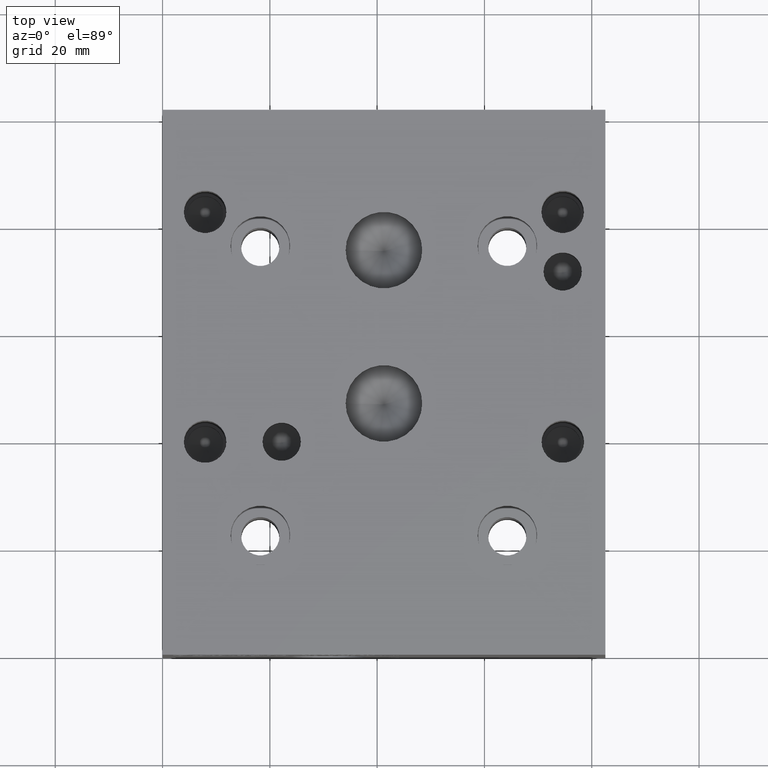
[diagram: clean part render]
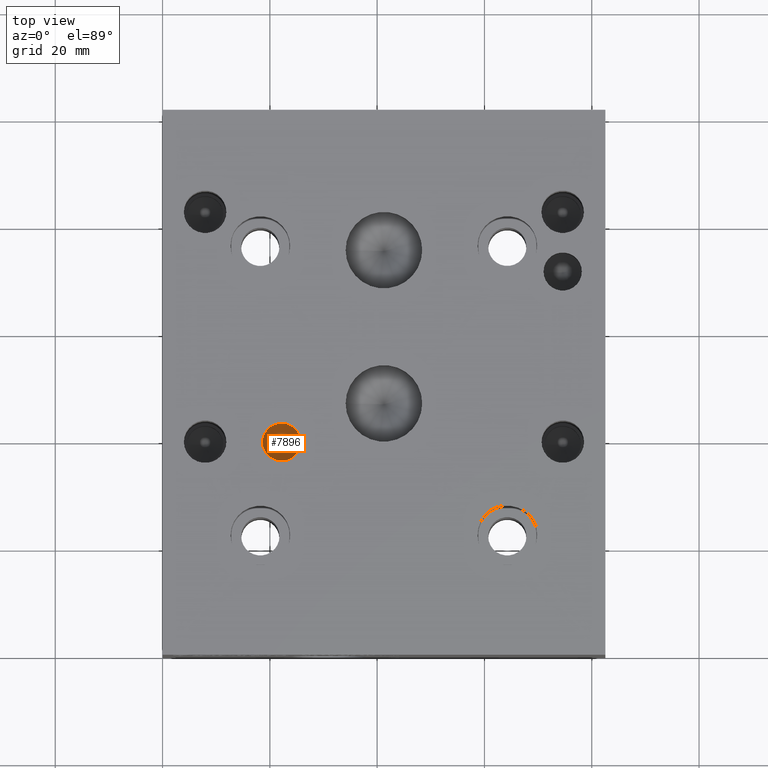
[diagram: same view with one face highlighted and labeled with its STEP entity id]
A machine part, top view. The second image highlights one B-rep face of the part: STEP entity #7896.
In plain terms, the highlighted conical surface has half-angle 60 deg.
Its self-contained STEP definition (entity closure, byte-faithful):
#19=CONICAL_SURFACE('',#8302,1.78435,1.0471975511966);
#754=CIRCLE('',#8303,3.5687);
#755=CIRCLE('',#8304,3.5687);
#1199=FACE_OUTER_BOUND('',#1651,.T.);
#1651=EDGE_LOOP('',(#7115,#7116,#7117,#7118));
#2462=LINE('',#13242,#3253);
#3253=VECTOR('',#9873,1.78435);
#3969=VERTEX_POINT('',#13238);
#3970=VERTEX_POINT('',#13239);
#3971=VERTEX_POINT('',#13241);
#5035=EDGE_CURVE('',#3969,#3970,#754,.T.);
#5036=EDGE_CURVE('',#3970,#3971,#2462,.T.);
#5037=EDGE_CURVE('',#3970,#3969,#755,.T.);
#7115=ORIENTED_EDGE('',*,*,#5035,.T.);
#7116=ORIENTED_EDGE('',*,*,#5036,.T.);
#7117=ORIENTED_EDGE('',*,*,#5036,.F.);
#7118=ORIENTED_EDGE('',*,*,#5037,.T.);
#7896=ADVANCED_FACE('',(#1199),#19,.F.);
#8302=AXIS2_PLACEMENT_3D('',#13237,#9869,#9870);
#8303=AXIS2_PLACEMENT_3D('',#13240,#9871,#9872);
#8304=AXIS2_PLACEMENT_3D('',#13243,#9874,#9875);
#9869=DIRECTION('center_axis',(0.,0.,1.));
#9870=DIRECTION('ref_axis',(1.,0.,0.));
#9871=DIRECTION('center_axis',(0.,0.,1.));
#9872=DIRECTION('ref_axis',(1.,0.,0.));
#9873=DIRECTION('',(0.866025403784439,1.06057523872491E-16,-0.5));
#9874=DIRECTION('center_axis',(0.,0.,1.));
#9875=DIRECTION('ref_axis',(1.,0.,0.));
#13237=CARTESIAN_POINT('Origin',(22.1996,39.7002,29.4498050471715));
#13238=CARTESIAN_POINT('',(25.7683,39.7002,30.48));
#13239=CARTESIAN_POINT('',(18.6309,39.7002,30.48));
#13240=CARTESIAN_POINT('Origin',(22.1996,39.7002,30.48));
#13241=CARTESIAN_POINT('',(22.1996,39.7002,28.419610094343));
#13242=CARTESIAN_POINT('',(20.41525,39.7002,29.4498050471715));
#13243=CARTESIAN_POINT('Origin',(22.1996,39.7002,30.48));